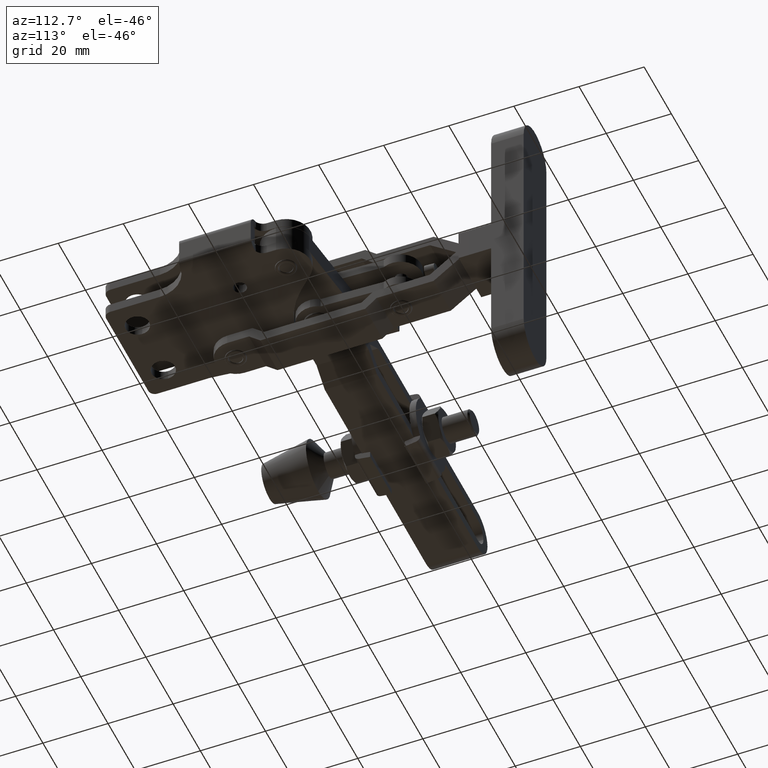
[diagram: clean part render]
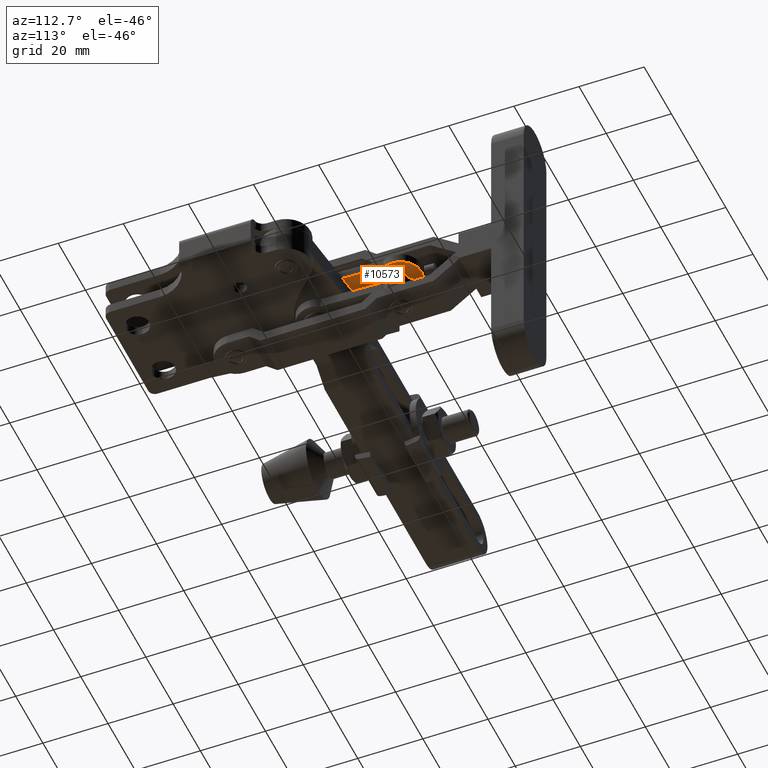
[diagram: same view with one face highlighted and labeled with its STEP entity id]
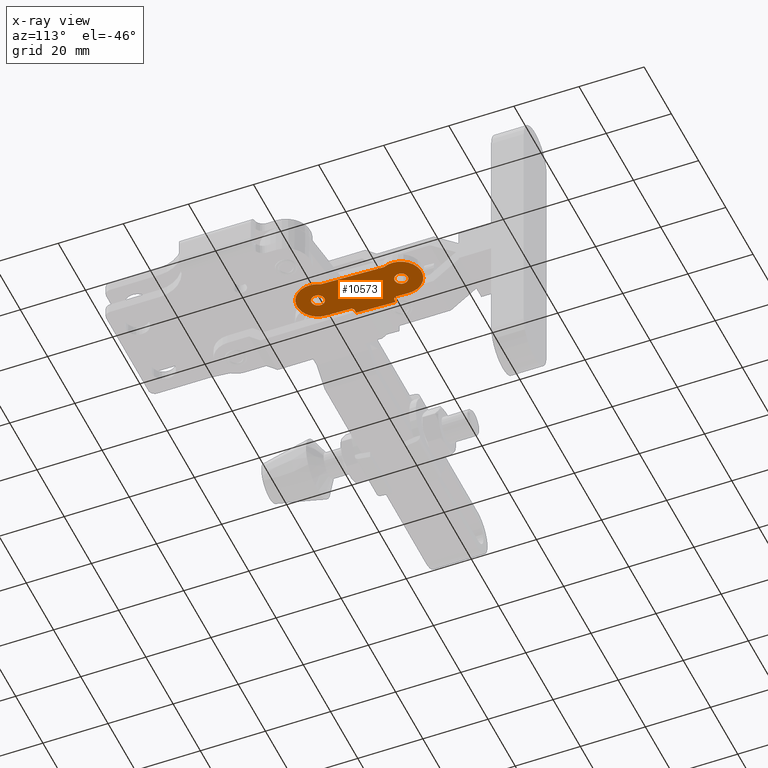
[diagram: x-ray of the same camera — body ghosted, the highlighted face saturated]
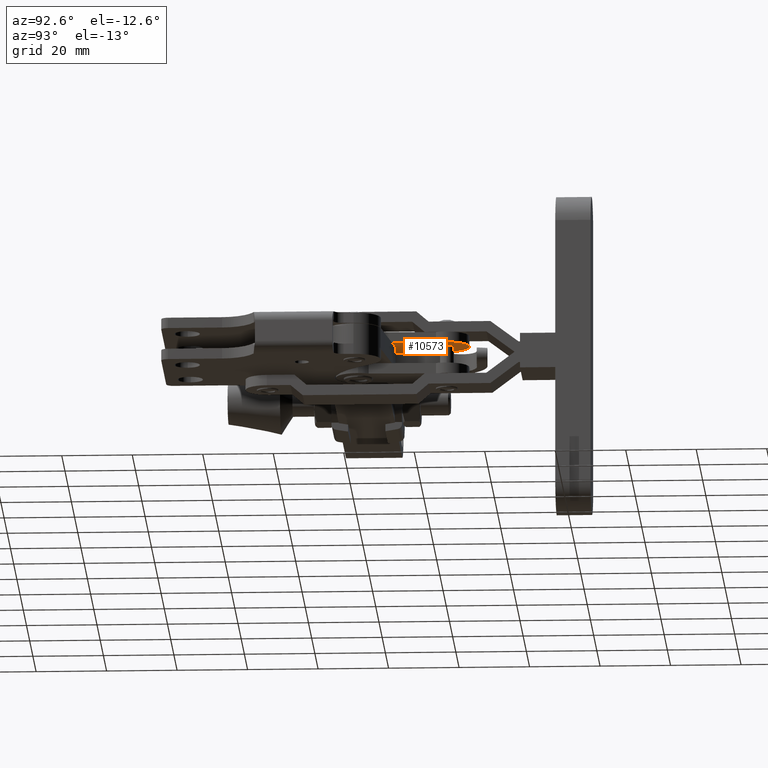
[diagram: same view with one face highlighted and labeled with its STEP entity id]
A machine part, auxiliary view. The second image highlights one B-rep face of the part: STEP entity #10573.
The next image is the same camera in x-ray: the body ghosted, the highlighted face saturated — about 0% of this face is hidden behind the body in this view.
A second angle (auxiliary view) of the same face is appended — the face is thin or edge-on in the first view.
In plain terms, the highlighted planar face has unit normal (0, -0, -1).
Its self-contained STEP definition (entity closure, byte-faithful):
#100 = CARTESIAN_POINT ( 'NONE',  ( -44.28638051597662400, 47.90391239108992500, 3.000000000000008900 ) ) ;
#145 = ORIENTED_EDGE ( 'NONE', *, *, #6664, .F. ) ;
#177 = FACE_BOUND ( 'NONE', #1394, .T. ) ;
#261 = CARTESIAN_POINT ( 'NONE',  ( -44.71789851360276200, 60.35456599594495200, 3.000000000000008900 ) ) ;
#302 = DIRECTION ( 'NONE',  ( 0.03549899373580285600, -0.9993697120904481100, 2.777404265319410300E-021 ) ) ;
#368 = EDGE_CURVE ( 'NONE', #9536, #5295, #5679, .T. ) ;
#455 = VECTOR ( 'NONE', #6318, 1000.000000000000000 ) ;
#459 = PLANE ( 'NONE',  #11636 ) ;
#495 = CARTESIAN_POINT ( 'NONE',  ( -17.71685812539860500, 34.04103400302586400, 3.000000000000008900 ) ) ;
#681 = DIRECTION ( 'NONE',  ( -1.000000000000000000, 0.0000000000000000000, 0.0000000000000000000 ) ) ;
#738 = VERTEX_POINT ( 'NONE', #6316 ) ;
#761 = EDGE_LOOP ( 'NONE', ( #10202, #1199, #7931, #10204, #9284, #6134, #7844, #8727, #3735, #145, #6244, #10246 ) ) ;
#908 = VECTOR ( 'NONE', #302, 1000.000000000000200 ) ;
#924 = EDGE_CURVE ( 'NONE', #4489, #738, #5234, .T. ) ;
#1155 = AXIS2_PLACEMENT_3D ( 'NONE', #3369, #9724, #4275 ) ;
#1165 = VECTOR ( 'NONE', #11508, 1000.000000000000200 ) ;
#1199 = ORIENTED_EDGE ( 'NONE', *, *, #8224, .T. ) ;
#1302 = CARTESIAN_POINT ( 'NONE',  ( -35.59999999999968200, 39.79999999999984800, 3.000000000000008900 ) ) ;
#1379 = ORIENTED_EDGE ( 'NONE', *, *, #9501, .F. ) ;
#1394 = EDGE_LOOP ( 'NONE', ( #3837, #9186 ) ) ;
#1397 = DIRECTION ( 'NONE',  ( -0.9993999430201366800, -0.03463746369680843100, -6.455621276190123900E-020 ) ) ;
#1455 = CARTESIAN_POINT ( 'NONE',  ( -33.59999999999969600, 39.79999999999984100, 3.000000000000008900 ) ) ;
#1457 = AXIS2_PLACEMENT_3D ( 'NONE', #7806, #2371, #8714 ) ;
#1568 = VECTOR ( 'NONE', #4775, 1000.000000000000100 ) ;
#1825 = CARTESIAN_POINT ( 'NONE',  ( -43.70199453258656100, 59.93137119998283400, 3.000000000000008900 ) ) ;
#1837 = VERTEX_POINT ( 'NONE', #1455 ) ;
#1851 = AXIS2_PLACEMENT_3D ( 'NONE', #10811, #5352, #11731 ) ;
#1896 = AXIS2_PLACEMENT_3D ( 'NONE', #11531, #6054, #681 ) ;
#1971 = CIRCLE ( 'NONE', #6032, 2.000000000000001800 ) ;
#2212 = DIRECTION ( 'NONE',  ( -0.9993999430201366800, -0.03463746369680834000, 0.0000000000000000000 ) ) ;
#2218 = DIRECTION ( 'NONE',  ( 6.461175000896594600E-020, -4.840572519252687800E-022, -1.000000000000000000 ) ) ;
#2240 = EDGE_CURVE ( 'NONE', #5307, #9388, #3979, .T. ) ;
#2268 = CARTESIAN_POINT ( 'NONE',  ( -42.86539330927806900, 64.66326457790486900, 3.000000000000008900 ) ) ;
#2288 = FACE_BOUND ( 'NONE', #6346, .T. ) ;
#2370 = EDGE_CURVE ( 'NONE', #7571, #4489, #10795, .T. ) ;
#2371 = DIRECTION ( 'NONE',  ( -6.461175000896594600E-020, 4.840572519252687800E-022, 1.000000000000000000 ) ) ;
#2398 = DIRECTION ( 'NONE',  ( -6.461175000896594600E-020, 4.840572519252687800E-022, 1.000000000000000000 ) ) ;
#2914 = CARTESIAN_POINT ( 'NONE',  ( -42.73723205326323400, 60.96540860669977500, 3.000000000000008900 ) ) ;
#2950 = EDGE_CURVE ( 'NONE', #10620, #7571, #4629, .T. ) ;
#3112 = VERTEX_POINT ( 'NONE', #2914 ) ;
#3127 = CIRCLE ( 'NONE', #1896, 2.000000000000001800 ) ;
#3242 = CARTESIAN_POINT ( 'NONE',  ( -29.20384036416456300, 40.02167976767697200, 3.000000000000008900 ) ) ;
#3369 = CARTESIAN_POINT ( 'NONE',  ( -36.46923367394919800, 64.88494434556440600, 3.000000000000008900 ) ) ;
#3419 = LINE ( 'NONE', #5406, #455 ) ;
#3510 = CIRCLE ( 'NONE', #1155, 6.400000000000004800 ) ;
#3718 = VERTEX_POINT ( 'NONE', #3242 ) ;
#3735 = ORIENTED_EDGE ( 'NONE', *, *, #924, .T. ) ;
#3804 = CIRCLE ( 'NONE', #7343, 2.000000000000001800 ) ;
#3834 = VERTEX_POINT ( 'NONE', #10645 ) ;
#3837 = ORIENTED_EDGE ( 'NONE', *, *, #6892, .T. ) ;
#3872 = ORIENTED_EDGE ( 'NONE', *, *, #5888, .F. ) ;
#3979 = LINE ( 'NONE', #261, #1568 ) ;
#4275 = DIRECTION ( 'NONE',  ( -0.9993999430201364600, -0.03463746369680890900, 0.0000000000000000000 ) ) ;
#4489 = VERTEX_POINT ( 'NONE', #6211 ) ;
#4620 = DIRECTION ( 'NONE',  ( -6.461175000896594600E-020, 4.840572519252687800E-022, 1.000000000000000000 ) ) ;
#4629 = CIRCLE ( 'NONE', #1851, 6.400000000506541800 ) ;
#4670 = EDGE_CURVE ( 'NONE', #6221, #3112, #9429, .T. ) ;
#4775 = DIRECTION ( 'NONE',  ( 0.03463746369680843100, -0.9993999430201365700, 2.721753935315423500E-021 ) ) ;
#4810 = DIRECTION ( 'NONE',  ( 6.461175000896594600E-020, -4.840572519252687800E-022, -1.000000000000000000 ) ) ;
#5002 = DIRECTION ( 'NONE',  ( 6.461175000896594600E-020, -4.840572519252687800E-022, -1.000000000000000000 ) ) ;
#5153 = EDGE_CURVE ( 'NONE', #5295, #3718, #8291, .T. ) ;
#5234 = CIRCLE ( 'NONE', #7466, 1.000000000000002200 ) ;
#5295 = VERTEX_POINT ( 'NONE', #10078 ) ;
#5307 = VERTEX_POINT ( 'NONE', #10162 ) ;
#5328 = AXIS2_PLACEMENT_3D ( 'NONE', #10476, #5002, #11393 ) ;
#5352 = DIRECTION ( 'NONE',  ( 6.461175000896594600E-020, -4.840572519252687800E-022, -1.000000000000000000 ) ) ;
#5406 = CARTESIAN_POINT ( 'NONE',  ( -47.28458034503721300, 47.79999999999949300, 3.000000000000008900 ) ) ;
#5488 = VECTOR ( 'NONE', #6548, 1000.000000000000100 ) ;
#5620 = CARTESIAN_POINT ( 'NONE',  ( -44.70203008033830400, 59.89671170733156200, 3.000000000000008900 ) ) ;
#5679 = LINE ( 'NONE', #9951, #908 ) ;
#5758 = LINE ( 'NONE', #5620, #5488 ) ;
#5879 = CARTESIAN_POINT ( 'NONE',  ( -37.59999999999969600, 39.79999999999984100, 3.000000000000008900 ) ) ;
#5888 = EDGE_CURVE ( 'NONE', #9557, #1837, #8130, .T. ) ;
#5932 = CARTESIAN_POINT ( 'NONE',  ( -41.99615963583480000, 39.57832023232273100, 3.000000000000008900 ) ) ;
#5997 = EDGE_CURVE ( 'NONE', #3718, #10620, #7689, .T. ) ;
#6032 = AXIS2_PLACEMENT_3D ( 'NONE', #10077, #4620, #10986 ) ;
#6034 = CARTESIAN_POINT ( 'NONE',  ( -42.25247422683527500, 46.97380362808748100, 3.000000000000008900 ) ) ;
#6054 = DIRECTION ( 'NONE',  ( -6.461175000896594600E-020, 4.840572519252687800E-022, 1.000000000000000000 ) ) ;
#6134 = ORIENTED_EDGE ( 'NONE', *, *, #5997, .T. ) ;
#6148 = CARTESIAN_POINT ( 'NONE',  ( -41.99819967382782700, 39.64820757492753200, 3.000000000000008900 ) ) ;
#6211 = CARTESIAN_POINT ( 'NONE',  ( -42.25247422683527500, 46.97380362808748100, 3.000000000000008900 ) ) ;
#6213 = CARTESIAN_POINT ( 'NONE',  ( -42.86539330927806900, 64.66326457790486900, 3.000000000000008900 ) ) ;
#6221 = VERTEX_POINT ( 'NONE', #1825 ) ;
#6244 = ORIENTED_EDGE ( 'NONE', *, *, #2240, .F. ) ;
#6316 = CARTESIAN_POINT ( 'NONE',  ( -43.28651163355228000, 47.93856610741083600, 3.000000000000008900 ) ) ;
#6318 = DIRECTION ( 'NONE',  ( 0.9993999430201365700, 0.03463746369680926300, 6.455621276190119100E-020 ) ) ;
#6346 = EDGE_LOOP ( 'NONE', ( #1379, #3872 ) ) ;
#6548 = DIRECTION ( 'NONE',  ( -0.9993999430201365700, -0.03463746369680843100, -6.455621276190122700E-020 ) ) ;
#6664 = EDGE_CURVE ( 'NONE', #9388, #738, #3419, .T. ) ;
#6807 = DIRECTION ( 'NONE',  ( 6.461175000896604200E-020, -4.840572519252652000E-022, -1.000000000000000000 ) ) ;
#6892 = EDGE_CURVE ( 'NONE', #3834, #7014, #3127, .T. ) ;
#7014 = VERTEX_POINT ( 'NONE', #11611 ) ;
#7343 = AXIS2_PLACEMENT_3D ( 'NONE', #7631, #2218, #8552 ) ;
#7399 = AXIS2_PLACEMENT_3D ( 'NONE', #10286, #4810, #11192 ) ;
#7466 = AXIS2_PLACEMENT_3D ( 'NONE', #7839, #2398, #8741 ) ;
#7571 = VERTEX_POINT ( 'NONE', #6148 ) ;
#7624 = DIRECTION ( 'NONE',  ( 6.461175000896594600E-020, -4.840572519252687800E-022, -1.000000000000000000 ) ) ;
#7631 = CARTESIAN_POINT ( 'NONE',  ( -35.59999999999969600, 39.79999999999984100, 3.000000000000008900 ) ) ;
#7676 = CARTESIAN_POINT ( 'NONE',  ( -30.72015389863337700, 62.07281317204946400, 3.000000000000008900 ) ) ;
#7689 = CIRCLE ( 'NONE', #5328, 6.400000000506541800 ) ;
#7699 = EDGE_CURVE ( 'NONE', #7014, #3834, #1971, .T. ) ;
#7806 = CARTESIAN_POINT ( 'NONE',  ( -43.73663199628337100, 60.93077114300297100, 3.000000000000008900 ) ) ;
#7839 = CARTESIAN_POINT ( 'NONE',  ( -43.25187416985546900, 46.93916616439068400, 3.000000000000008900 ) ) ;
#7844 = ORIENTED_EDGE ( 'NONE', *, *, #2950, .T. ) ;
#7931 = ORIENTED_EDGE ( 'NONE', *, *, #8356, .T. ) ;
#8045 = EDGE_CURVE ( 'NONE', #6221, #5307, #5758, .T. ) ;
#8130 = CIRCLE ( 'NONE', #7399, 2.000000000000001800 ) ;
#8224 = EDGE_CURVE ( 'NONE', #3112, #8670, #11324, .T. ) ;
#8291 = CIRCLE ( 'NONE', #8305, 6.400000000506541800 ) ;
#8305 = AXIS2_PLACEMENT_3D ( 'NONE', #1302, #7624, #2212 ) ;
#8356 = EDGE_CURVE ( 'NONE', #8670, #9536, #3510, .T. ) ;
#8552 = DIRECTION ( 'NONE',  ( -1.000000000000000000, 0.0000000000000000000, 0.0000000000000000000 ) ) ;
#8670 = VERTEX_POINT ( 'NONE', #6213 ) ;
#8714 = DIRECTION ( 'NONE',  ( -0.9993999430201365700, -0.03463746369680711200, 0.0000000000000000000 ) ) ;
#8727 = ORIENTED_EDGE ( 'NONE', *, *, #2370, .T. ) ;
#8741 = DIRECTION ( 'NONE',  ( -0.9993999430201370200, -0.03463746369680018700, 0.0000000000000000000 ) ) ;
#8902 = VECTOR ( 'NONE', #11361, 1000.000000000000000 ) ;
#9186 = ORIENTED_EDGE ( 'NONE', *, *, #7699, .T. ) ;
#9248 = FACE_OUTER_BOUND ( 'NONE', #761, .T. ) ;
#9284 = ORIENTED_EDGE ( 'NONE', *, *, #5153, .T. ) ;
#9388 = VERTEX_POINT ( 'NONE', #100 ) ;
#9429 = CIRCLE ( 'NONE', #1457, 1.000000000000002700 ) ;
#9501 = EDGE_CURVE ( 'NONE', #1837, #9557, #3804, .T. ) ;
#9536 = VERTEX_POINT ( 'NONE', #7676 ) ;
#9557 = VERTEX_POINT ( 'NONE', #5879 ) ;
#9724 = DIRECTION ( 'NONE',  ( 6.461175000896594600E-020, -4.840572519252687800E-022, -1.000000000000000000 ) ) ;
#9951 = CARTESIAN_POINT ( 'NONE',  ( -30.72015389863337700, 62.07281317204946400, 3.000000000000008900 ) ) ;
#10077 = CARTESIAN_POINT ( 'NONE',  ( -36.79999999999984800, 64.90000000000020500, 3.000000000000008900 ) ) ;
#10078 = CARTESIAN_POINT ( 'NONE',  ( -30.04168658530900200, 42.97256236984434000, 3.000000000000008900 ) ) ;
#10162 = CARTESIAN_POINT ( 'NONE',  ( -44.70203008033830400, 59.89671170733156200, 3.000000000000008900 ) ) ;
#10202 = ORIENTED_EDGE ( 'NONE', *, *, #4670, .T. ) ;
#10204 = ORIENTED_EDGE ( 'NONE', *, *, #368, .T. ) ;
#10246 = ORIENTED_EDGE ( 'NONE', *, *, #8045, .F. ) ;
#10286 = CARTESIAN_POINT ( 'NONE',  ( -35.59999999999969600, 39.79999999999984100, 3.000000000000008900 ) ) ;
#10476 = CARTESIAN_POINT ( 'NONE',  ( -35.59999999999968200, 39.79999999999984800, 3.000000000000008900 ) ) ;
#10573 = ADVANCED_FACE ( 'NONE', ( #177, #9248, #2288 ), #459, .T. ) ;
#10620 = VERTEX_POINT ( 'NONE', #5932 ) ;
#10645 = CARTESIAN_POINT ( 'NONE',  ( -34.79999999999984800, 64.90000000000020500, 3.000000000000008900 ) ) ;
#10795 = LINE ( 'NONE', #6034, #1165 ) ;
#10811 = CARTESIAN_POINT ( 'NONE',  ( -35.59999999999968200, 39.79999999999984800, 3.000000000000008900 ) ) ;
#10986 = DIRECTION ( 'NONE',  ( -1.000000000000000000, 0.0000000000000000000, 0.0000000000000000000 ) ) ;
#11192 = DIRECTION ( 'NONE',  ( -1.000000000000000000, 0.0000000000000000000, 0.0000000000000000000 ) ) ;
#11324 = LINE ( 'NONE', #2268, #8902 ) ;
#11361 = DIRECTION ( 'NONE',  ( -0.03463746369680887500, 0.9993999430201365700, -2.721753935315464200E-021 ) ) ;
#11393 = DIRECTION ( 'NONE',  ( -0.9993999430201366800, -0.03463746369680834000, 0.0000000000000000000 ) ) ;
#11508 = DIRECTION ( 'NONE',  ( -0.03468953416426761400, 0.9993981369901916400, -2.725117425119854300E-021 ) ) ;
#11531 = CARTESIAN_POINT ( 'NONE',  ( -36.79999999999984800, 64.90000000000020500, 3.000000000000008900 ) ) ;
#11611 = CARTESIAN_POINT ( 'NONE',  ( -38.79999999999984800, 64.90000000000020500, 3.000000000000008900 ) ) ;
#11636 = AXIS2_PLACEMENT_3D ( 'NONE', #495, #6807, #1397 ) ;
#11731 = DIRECTION ( 'NONE',  ( -0.9993999430201366800, -0.03463746369680834000, 0.0000000000000000000 ) ) ;